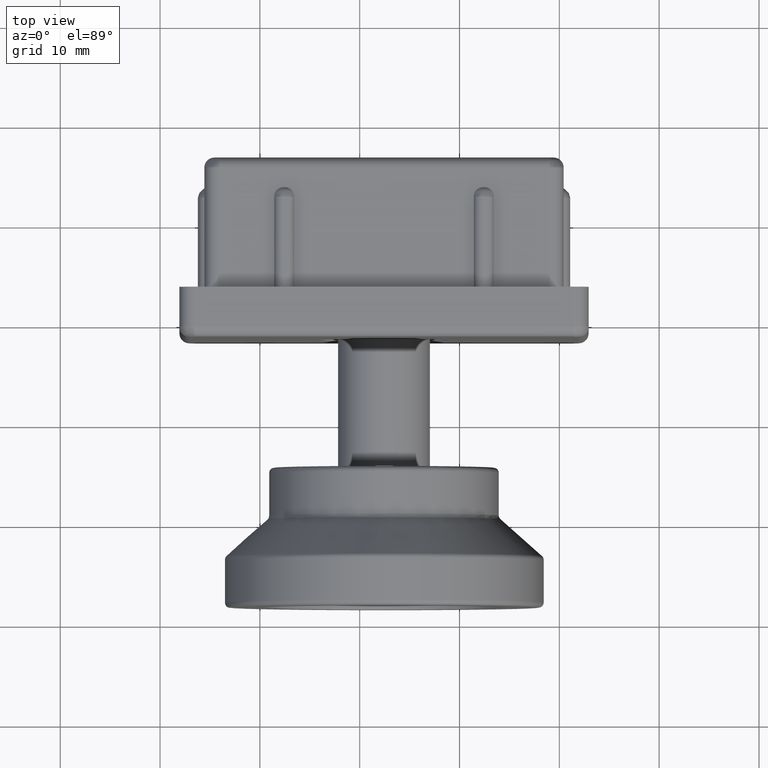
[diagram: clean part render]
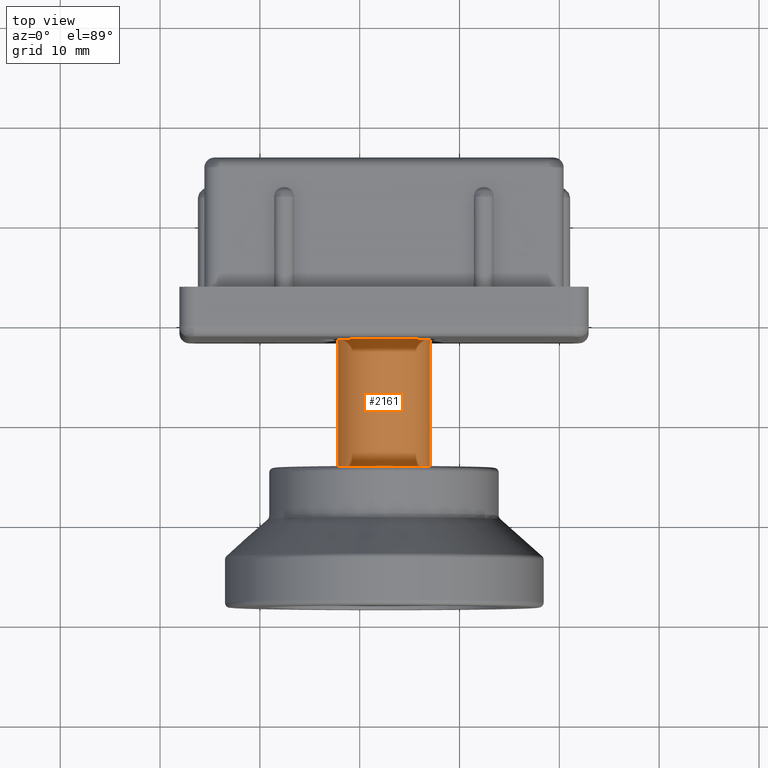
[diagram: same view with one face highlighted and labeled with its STEP entity id]
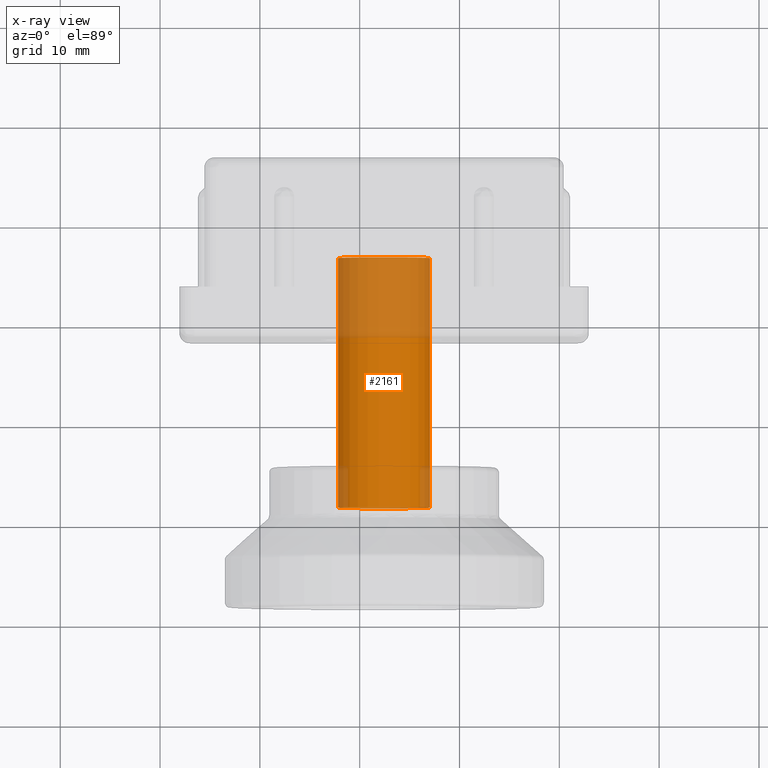
[diagram: x-ray of the same camera — body ghosted, the highlighted face saturated]
A machine part, top view. The second image highlights one B-rep face of the part: STEP entity #2161.
The next image is the same camera in x-ray: the body ghosted, the highlighted face saturated — about 36% of this face is hidden behind the body in this view.
In plain terms, the highlighted cylindrical surface (bore or boss wall) has radius 4.6 mm, axis along (0, -1, 0).
Its self-contained STEP definition (entity closure, byte-faithful):
#60=FACE_BOUND('',#431,.T.);
#106=CIRCLE('',#2326,4.6);
#107=CIRCLE('',#2328,4.59999999999999);
#286=FACE_OUTER_BOUND('',#430,.T.);
#430=EDGE_LOOP('',(#1616));
#431=EDGE_LOOP('',(#1617));
#964=VERTEX_POINT('',#3434);
#965=VERTEX_POINT('',#3437);
#1208=EDGE_CURVE('',#964,#964,#106,.T.);
#1209=EDGE_CURVE('',#965,#965,#107,.T.);
#1616=ORIENTED_EDGE('',*,*,#1208,.T.);
#1617=ORIENTED_EDGE('',*,*,#1209,.T.);
#2083=CYLINDRICAL_SURFACE('',#2329,4.6);
#2161=ADVANCED_FACE('',(#286,#60),#2083,.T.);
#2326=AXIS2_PLACEMENT_3D('',#3435,#2671,#2672);
#2328=AXIS2_PLACEMENT_3D('',#3438,#2675,#2676);
#2329=AXIS2_PLACEMENT_3D('',#3439,#2677,#2678);
#2671=DIRECTION('center_axis',(-6.34413156928661E-17,1.,0.));
#2672=DIRECTION('ref_axis',(-1.,0.,0.));
#2675=DIRECTION('center_axis',(6.34413156928661E-17,-1.,0.));
#2676=DIRECTION('ref_axis',(1.,6.34413156928661E-17,0.));
#2677=DIRECTION('center_axis',(6.34413156928661E-17,-1.,0.));
#2678=DIRECTION('ref_axis',(1.,0.,0.));
#3434=CARTESIAN_POINT('',(4.6,10.,-5.63337527607783E-16));
#3435=CARTESIAN_POINT('Origin',(-8.88178419700125E-16,10.,0.));
#3437=CARTESIAN_POINT('',(4.59999999999999,35.,0.));
#3438=CARTESIAN_POINT('Origin',(-2.22044604925031E-15,35.,0.));
#3439=CARTESIAN_POINT('Origin',(-1.55431223447522E-15,24.5,0.));